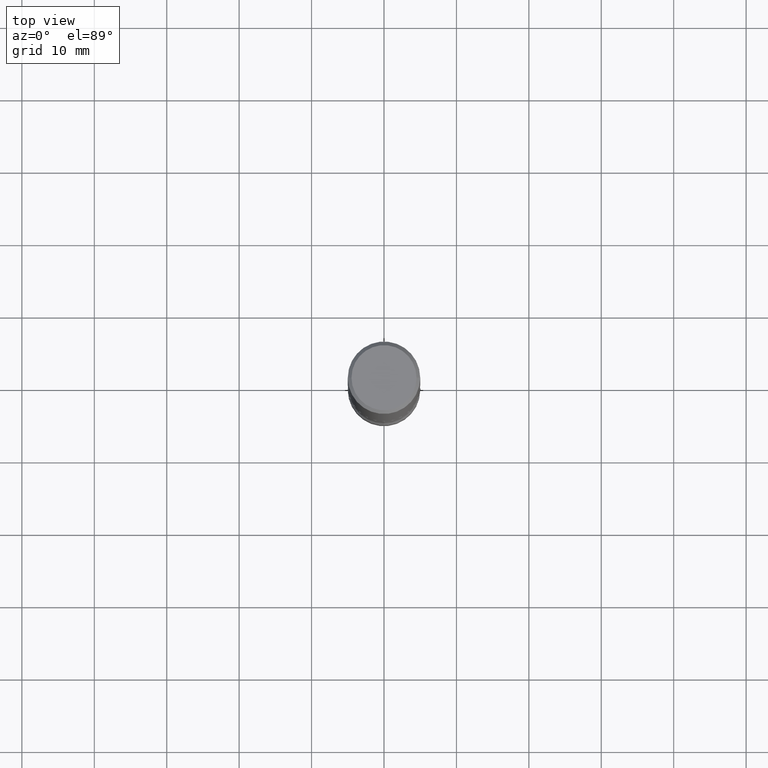
[diagram: clean part render]
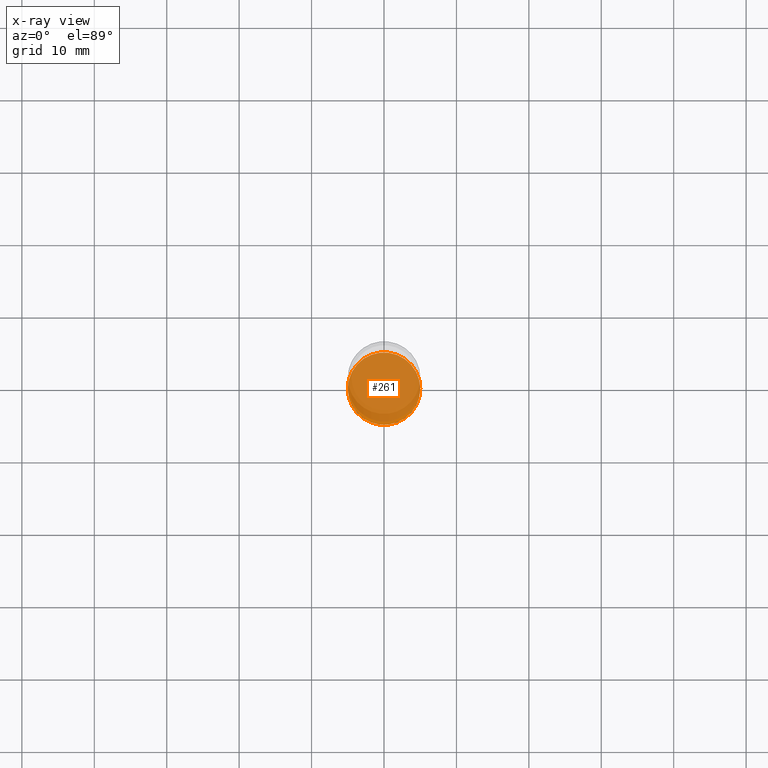
[diagram: x-ray — body ghosted, one internal face saturated and labeled with its STEP entity id]
A machine part, top view, then the same camera in x-ray: the body is ghosted and one INTERNAL B-rep face — a face not visible from any outside direction — is saturated and labeled: STEP entity #261.
In plain terms, the highlighted planar face has unit normal (0, -0, -1).
Its self-contained STEP definition (entity closure, byte-faithful):
#53 = ORIENTED_EDGE ( 'NONE', *, *, #158, .T. ) ;
#55 = VERTEX_POINT ( 'NONE', #459 ) ;
#103 = DIRECTION ( 'NONE',  ( -1.000000000000000000, 6.982962677686265922E-15, -4.876176775795935793E-29 ) ) ;
#107 = CARTESIAN_POINT ( 'NONE',  ( 8.472571225909027026E-29, -1.209658624655596689E-14, -3.464600000000001234 ) ) ;
#119 = ORIENTED_EDGE ( 'NONE', *, *, #194, .T. ) ;
#158 = EDGE_CURVE ( 'NONE', #55, #558, #203, .T. ) ;
#194 = EDGE_CURVE ( 'NONE', #558, #55, #414, .T. ) ;
#198 = DIRECTION ( 'NONE',  ( 1.000000000000000000, -6.982962677686263555E-15, 0.000000000000000000 ) ) ;
#203 = CIRCLE ( 'NONE', #473, 0.1968500000000001360 ) ;
#227 = EDGE_LOOP ( 'NONE', ( #119, #53 ) ) ;
#241 = AXIS2_PLACEMENT_3D ( 'NONE', #107, #323, #103 ) ;
#261 = ADVANCED_FACE ( 'NONE', ( #523 ), #271, .F. ) ;
#271 = PLANE ( 'NONE',  #241 ) ;
#273 = AXIS2_PLACEMENT_3D ( 'NONE', #538, #413, #198 ) ;
#278 = DIRECTION ( 'NONE',  ( -2.445468806185136597E-29, 3.491481338843145583E-15, 1.000000000000000000 ) ) ;
#323 = DIRECTION ( 'NONE',  ( 2.438088387897960049E-29, -3.491481338843145188E-15, -1.000000000000000000 ) ) ;
#324 = DIRECTION ( 'NONE',  ( 1.000000000000000000, -6.982962677686263555E-15, 0.000000000000000000 ) ) ;
#331 = CARTESIAN_POINT ( 'NONE',  ( 0.1968500000000001360, -1.347118244965850850E-14, -3.464600000000001234 ) ) ;
#373 = CARTESIAN_POINT ( 'NONE',  ( 8.472571225909027026E-29, -1.209658624655596689E-14, -3.464600000000001234 ) ) ;
#413 = DIRECTION ( 'NONE',  ( -2.445468806185136597E-29, 3.491481338843145583E-15, 1.000000000000000000 ) ) ;
#414 = CIRCLE ( 'NONE', #273, 0.1968500000000001360 ) ;
#459 = CARTESIAN_POINT ( 'NONE',  ( -0.1968500000000001360, -1.135078988157587274E-14, -3.464600000000001234 ) ) ;
#473 = AXIS2_PLACEMENT_3D ( 'NONE', #373, #278, #324 ) ;
#523 = FACE_OUTER_BOUND ( 'NONE', #227, .T. ) ;
#538 = CARTESIAN_POINT ( 'NONE',  ( 8.472571225909027026E-29, -1.209658624655596689E-14, -3.464600000000001234 ) ) ;
#558 = VERTEX_POINT ( 'NONE', #331 ) ;